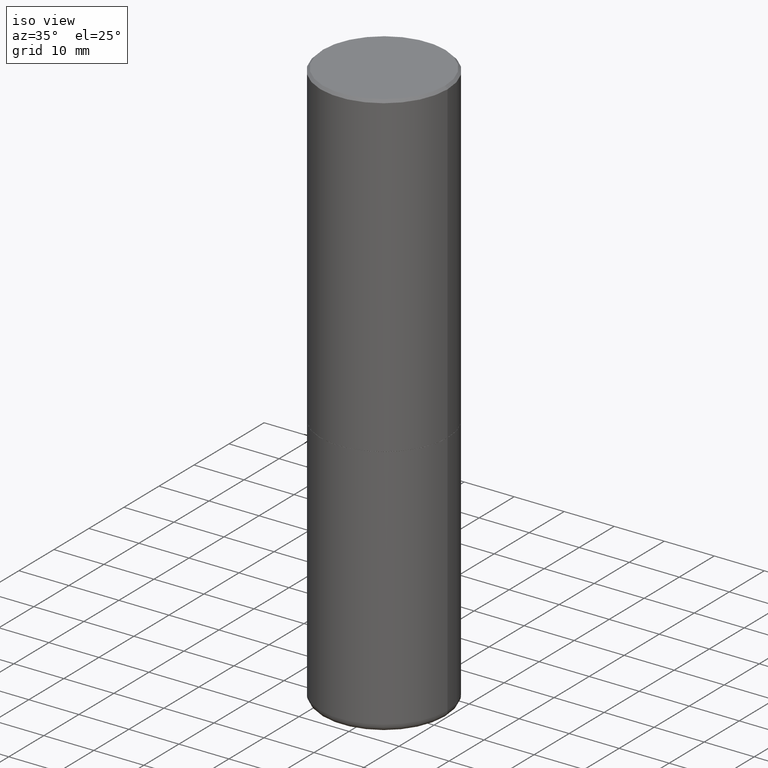
[diagram: clean part render]
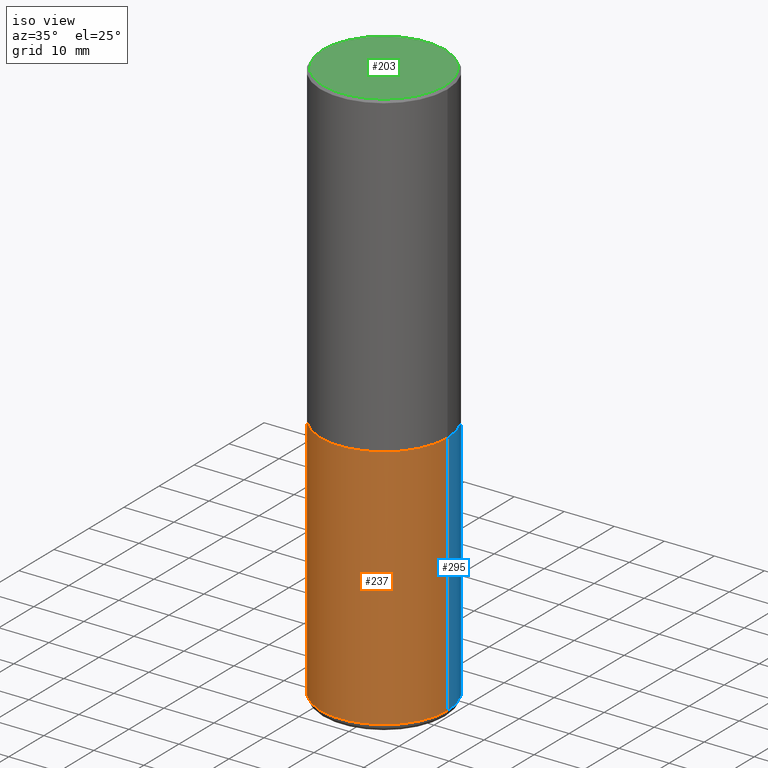
[diagram: same view with three faces highlighted in distinct colors, each labeled with its STEP entity id]
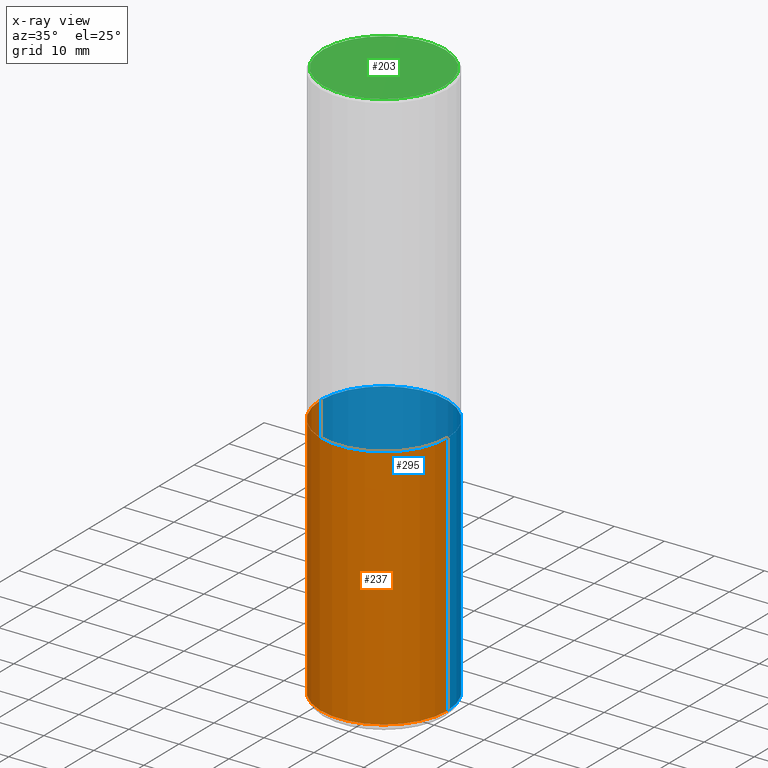
[diagram: x-ray of the same camera — body ghosted, the three highlighted faces saturated]
A machine part, iso view with three faces highlighted in distinct colors.
The next image is the same camera in x-ray (body ghosted, the three faces saturated) — at least one of them is partly hidden behind the body in this view.
Their STEP definitions:

[orange] entity #237 — the highlighted cylindrical surface (partial cylindrical patch) has radius 12.7 mm, axis along (-0, 0, 1).
#7 = CARTESIAN_POINT ( 'NONE',  ( 0.5000000000000000000, -1.222018468595099830E-14, -2.500000000000000000 ) ) ;
#12 = AXIS2_PLACEMENT_3D ( 'NONE', #243, #401, #70 ) ;
#13 = FACE_OUTER_BOUND ( 'NONE', #118, .T. ) ;
#21 = DIRECTION ( 'NONE',  ( -2.445468806185136597E-29, 3.491481338843145583E-15, 1.000000000000000000 ) ) ;
#33 = ORIENTED_EDGE ( 'NONE', *, *, #84, .F. ) ;
#41 = CARTESIAN_POINT ( 'NONE',  ( 0.5000000000000000000, -3.491481338843133355E-15, 2.438088387897967896E-29 ) ) ;
#49 = VECTOR ( 'NONE', #81, 39.37007874015748143 ) ;
#69 = DIRECTION ( 'NONE',  ( -2.445468806185136877E-29, 3.491481338843145188E-15, 1.000000000000000000 ) ) ;
#70 = DIRECTION ( 'NONE',  ( 1.000000000000000000, -6.982962677686269077E-15, 0.000000000000000000 ) ) ;
#81 = DIRECTION ( 'NONE',  ( -2.445468806185136877E-29, 3.491481338843145188E-15, 1.000000000000000000 ) ) ;
#84 = EDGE_CURVE ( 'NONE', #261, #184, #140, .T. ) ;
#106 = EDGE_CURVE ( 'NONE', #158, #184, #209, .T. ) ;
#117 = CARTESIAN_POINT ( 'NONE',  ( -0.4999999999999998335, -1.194946346566306765E-14, -4.440000000000000391 ) ) ;
#118 = EDGE_LOOP ( 'NONE', ( #383, #168, #327, #33 ) ) ;
#140 = CIRCLE ( 'NONE', #12, 0.5000000000000000000 ) ;
#146 = CARTESIAN_POINT ( 'NONE',  ( -0.5000000000000000000, -8.562726566985215043E-15, -2.500000000000000000 ) ) ;
#148 = LINE ( 'NONE', #289, #49 ) ;
#158 = VERTEX_POINT ( 'NONE', #344 ) ;
#168 = ORIENTED_EDGE ( 'NONE', *, *, #259, .T. ) ;
#184 = VERTEX_POINT ( 'NONE', #7 ) ;
#192 = CARTESIAN_POINT ( 'NONE',  ( 0.000000000000000000, 0.000000000000000000, 0.000000000000000000 ) ) ;
#196 = AXIS2_PLACEMENT_3D ( 'NONE', #352, #21, #329 ) ;
#202 = VERTEX_POINT ( 'NONE', #117 ) ;
#209 = LINE ( 'NONE', #41, #309 ) ;
#214 = AXIS2_PLACEMENT_3D ( 'NONE', #192, #321, #357 ) ;
#219 = EDGE_CURVE ( 'NONE', #202, #261, #148, .T. ) ;
#237 = ADVANCED_FACE ( 'NONE', ( #13 ), #251, .T. ) ;
#243 = CARTESIAN_POINT ( 'NONE',  ( 6.113672015462842613E-29, -8.728703347107864943E-15, -2.500000000000000000 ) ) ;
#251 = CYLINDRICAL_SURFACE ( 'NONE', #214, 0.5000000000000000000 ) ;
#259 = EDGE_CURVE ( 'NONE', #202, #158, #280, .T. ) ;
#261 = VERTEX_POINT ( 'NONE', #146 ) ;
#280 = CIRCLE ( 'NONE', #196, 0.5000000000000001110 ) ;
#289 = CARTESIAN_POINT ( 'NONE',  ( -0.5000000000000000000, 3.552713678800500929E-15, -2.459467545127452891E-29 ) ) ;
#309 = VECTOR ( 'NONE', #69, 39.37007874015748143 ) ;
#321 = DIRECTION ( 'NONE',  ( -2.445468806185136597E-29, 3.491481338843145583E-15, 1.000000000000000000 ) ) ;
#327 = ORIENTED_EDGE ( 'NONE', *, *, #106, .T. ) ;
#329 = DIRECTION ( 'NONE',  ( 1.000000000000000000, -6.982962677686265133E-15, 0.000000000000000000 ) ) ;
#344 = CARTESIAN_POINT ( 'NONE',  ( 0.4999999999999998335, -1.899365848330670036E-14, -4.440000000000000391 ) ) ;
#352 = CARTESIAN_POINT ( 'NONE',  ( 1.085788149946200541E-28, -1.550217714446356700E-14, -4.440000000000000391 ) ) ;
#357 = DIRECTION ( 'NONE',  ( 1.000000000000000000, -6.982962677686266711E-15, 4.876176775795935793E-29 ) ) ;
#383 = ORIENTED_EDGE ( 'NONE', *, *, #219, .F. ) ;
#401 = DIRECTION ( 'NONE',  ( -2.445468806185136597E-29, 3.491481338843145583E-15, 1.000000000000000000 ) ) ;

[blue] entity #295 — the highlighted cylindrical surface (partial cylindrical patch) has radius 12.7 mm, axis along (-0, 0, 1).
#1 = DIRECTION ( 'NONE',  ( 1.000000000000000000, -6.982962677686269077E-15, 0.000000000000000000 ) ) ;
#7 = CARTESIAN_POINT ( 'NONE',  ( 0.5000000000000000000, -1.222018468595099830E-14, -2.500000000000000000 ) ) ;
#41 = CARTESIAN_POINT ( 'NONE',  ( 0.5000000000000000000, -3.491481338843133355E-15, 2.438088387897967896E-29 ) ) ;
#49 = VECTOR ( 'NONE', #81, 39.37007874015748143 ) ;
#51 = ORIENTED_EDGE ( 'NONE', *, *, #219, .T. ) ;
#69 = DIRECTION ( 'NONE',  ( -2.445468806185136877E-29, 3.491481338843145188E-15, 1.000000000000000000 ) ) ;
#81 = DIRECTION ( 'NONE',  ( -2.445468806185136877E-29, 3.491481338843145188E-15, 1.000000000000000000 ) ) ;
#83 = DIRECTION ( 'NONE',  ( 1.000000000000000000, -6.982962677686266711E-15, 4.876176775795935793E-29 ) ) ;
#106 = EDGE_CURVE ( 'NONE', #158, #184, #209, .T. ) ;
#117 = CARTESIAN_POINT ( 'NONE',  ( -0.4999999999999998335, -1.194946346566306765E-14, -4.440000000000000391 ) ) ;
#119 = AXIS2_PLACEMENT_3D ( 'NONE', #220, #407, #83 ) ;
#121 = ORIENTED_EDGE ( 'NONE', *, *, #185, .T. ) ;
#141 = CIRCLE ( 'NONE', #274, 0.5000000000000000000 ) ;
#146 = CARTESIAN_POINT ( 'NONE',  ( -0.5000000000000000000, -8.562726566985215043E-15, -2.500000000000000000 ) ) ;
#147 = ORIENTED_EDGE ( 'NONE', *, *, #106, .F. ) ;
#148 = LINE ( 'NONE', #289, #49 ) ;
#158 = VERTEX_POINT ( 'NONE', #344 ) ;
#183 = FACE_OUTER_BOUND ( 'NONE', #308, .T. ) ;
#184 = VERTEX_POINT ( 'NONE', #7 ) ;
#185 = EDGE_CURVE ( 'NONE', #158, #202, #415, .T. ) ;
#200 = DIRECTION ( 'NONE',  ( -2.445468806185136597E-29, 3.491481338843145583E-15, 1.000000000000000000 ) ) ;
#202 = VERTEX_POINT ( 'NONE', #117 ) ;
#209 = LINE ( 'NONE', #41, #309 ) ;
#219 = EDGE_CURVE ( 'NONE', #202, #261, #148, .T. ) ;
#220 = CARTESIAN_POINT ( 'NONE',  ( 0.000000000000000000, 0.000000000000000000, 0.000000000000000000 ) ) ;
#242 = AXIS2_PLACEMENT_3D ( 'NONE', #281, #397, #379 ) ;
#261 = VERTEX_POINT ( 'NONE', #146 ) ;
#274 = AXIS2_PLACEMENT_3D ( 'NONE', #389, #200, #1 ) ;
#281 = CARTESIAN_POINT ( 'NONE',  ( 1.085788149946200541E-28, -1.550217714446356700E-14, -4.440000000000000391 ) ) ;
#289 = CARTESIAN_POINT ( 'NONE',  ( -0.5000000000000000000, 3.552713678800500929E-15, -2.459467545127452891E-29 ) ) ;
#295 = ADVANCED_FACE ( 'NONE', ( #183 ), #331, .T. ) ;
#308 = EDGE_LOOP ( 'NONE', ( #121, #51, #330, #147 ) ) ;
#309 = VECTOR ( 'NONE', #69, 39.37007874015748143 ) ;
#315 = EDGE_CURVE ( 'NONE', #184, #261, #141, .T. ) ;
#330 = ORIENTED_EDGE ( 'NONE', *, *, #315, .F. ) ;
#331 = CYLINDRICAL_SURFACE ( 'NONE', #119, 0.5000000000000000000 ) ;
#344 = CARTESIAN_POINT ( 'NONE',  ( 0.4999999999999998335, -1.899365848330670036E-14, -4.440000000000000391 ) ) ;
#379 = DIRECTION ( 'NONE',  ( 1.000000000000000000, -6.982962677686265133E-15, 0.000000000000000000 ) ) ;
#389 = CARTESIAN_POINT ( 'NONE',  ( 6.113672015462842613E-29, -8.728703347107864943E-15, -2.500000000000000000 ) ) ;
#397 = DIRECTION ( 'NONE',  ( -2.445468806185136597E-29, 3.491481338843145583E-15, 1.000000000000000000 ) ) ;
#407 = DIRECTION ( 'NONE',  ( -2.445468806185136597E-29, 3.491481338843145583E-15, 1.000000000000000000 ) ) ;
#415 = CIRCLE ( 'NONE', #242, 0.5000000000000001110 ) ;

[green] entity #203 — the highlighted planar face has unit normal (0, -0, -1).
#48 = AXIS2_PLACEMENT_3D ( 'NONE', #340, #134, #173 ) ;
#55 = DIRECTION ( 'NONE',  ( 2.438088387897960049E-29, -3.491481338843145188E-15, -1.000000000000000000 ) ) ;
#61 = EDGE_CURVE ( 'NONE', #90, #160, #240, .T. ) ;
#77 = PLANE ( 'NONE',  #293 ) ;
#87 = DIRECTION ( 'NONE',  ( 1.000000000000000000, -6.982962677686266711E-15, 4.876431871984414276E-29 ) ) ;
#90 = VERTEX_POINT ( 'NONE', #208 ) ;
#99 = CARTESIAN_POINT ( 'NONE',  ( 7.306959900346538153E-46, -1.043240219266313067E-31, -2.987958743070287587E-17 ) ) ;
#114 = CARTESIAN_POINT ( 'NONE',  ( 3.351822085289407153E-15, 0.4799999999999999267, -1.690850836360061184E-15 ) ) ;
#134 = DIRECTION ( 'NONE',  ( -2.445468806185136597E-29, 3.491481338843145583E-15, 1.000000000000000000 ) ) ;
#160 = VERTEX_POINT ( 'NONE', #350 ) ;
#173 = DIRECTION ( 'NONE',  ( 1.000000000000000000, -6.982962677686266711E-15, 4.876431871984414276E-29 ) ) ;
#179 = DIRECTION ( 'NONE',  ( -1.000000000000000000, 6.982962677686265922E-15, -4.876176775795935793E-29 ) ) ;
#182 = AXIS2_PLACEMENT_3D ( 'NONE', #99, #201, #87 ) ;
#189 = ORIENTED_EDGE ( 'NONE', *, *, #61, .T. ) ;
#201 = DIRECTION ( 'NONE',  ( -2.445468806185136597E-29, 3.491481338843145583E-15, 1.000000000000000000 ) ) ;
#203 = ADVANCED_FACE ( 'NONE', ( #326 ), #77, .F. ) ;
#208 = CARTESIAN_POINT ( 'NONE',  ( -0.4799999999999999267, 3.386736898677838408E-15, -2.987958743072644309E-17 ) ) ;
#240 = CIRCLE ( 'NONE', #48, 0.4799999999999999267 ) ;
#278 = ORIENTED_EDGE ( 'NONE', *, *, #373, .T. ) ;
#293 = AXIS2_PLACEMENT_3D ( 'NONE', #114, #55, #179 ) ;
#326 = FACE_OUTER_BOUND ( 'NONE', #334, .T. ) ;
#334 = EDGE_LOOP ( 'NONE', ( #189, #278 ) ) ;
#340 = CARTESIAN_POINT ( 'NONE',  ( 7.306959900346538153E-46, -1.043240219266313067E-31, -2.987958743070287587E-17 ) ) ;
#350 = CARTESIAN_POINT ( 'NONE',  ( 0.4799999999999999267, -3.396558832296481704E-15, -2.987958743067928400E-17 ) ) ;
#373 = EDGE_CURVE ( 'NONE', #160, #90, #402, .T. ) ;
#402 = CIRCLE ( 'NONE', #182, 0.4799999999999999267 ) ;